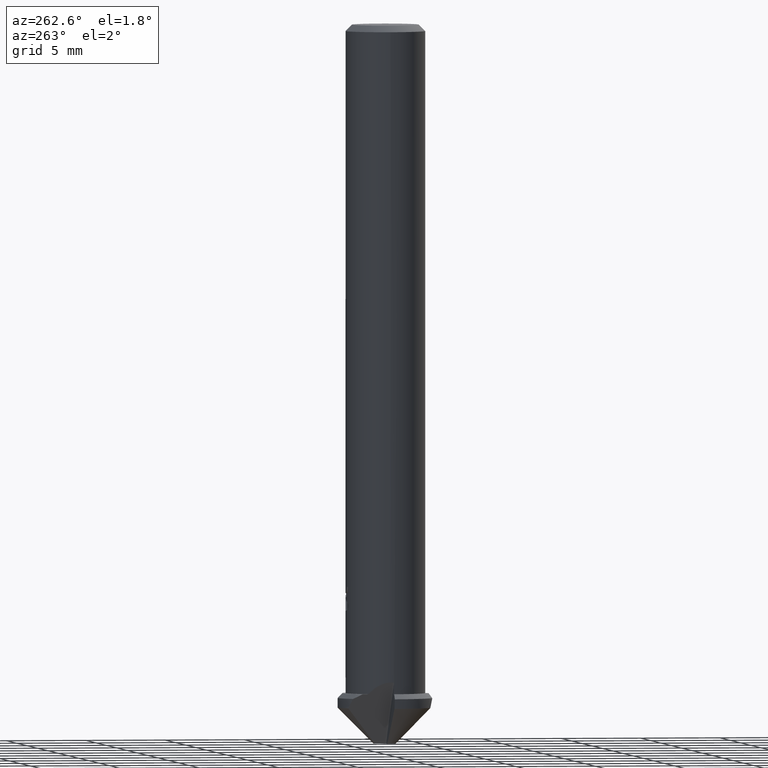
[diagram: clean part render]
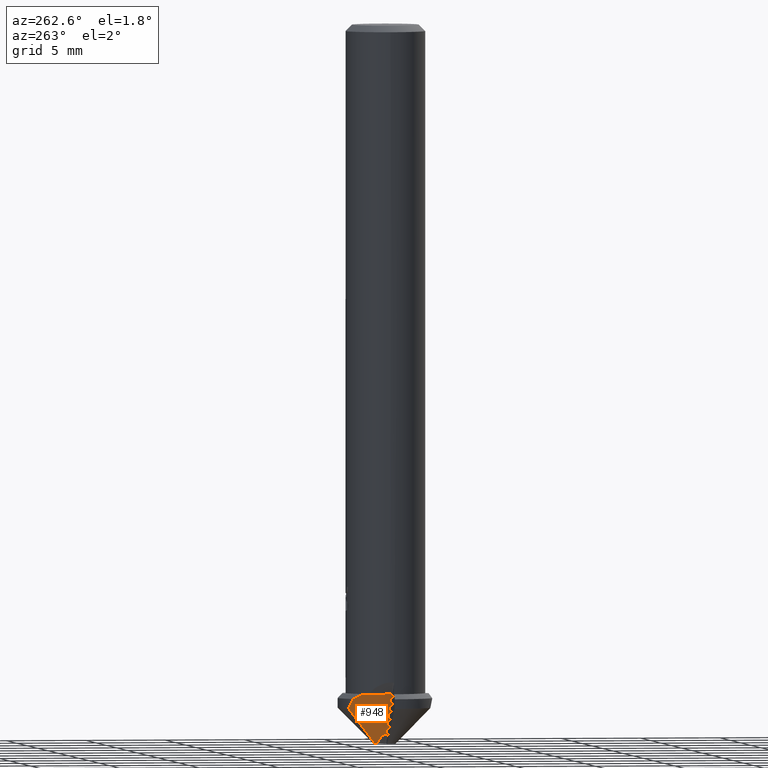
[diagram: same view with one face highlighted and labeled with its STEP entity id]
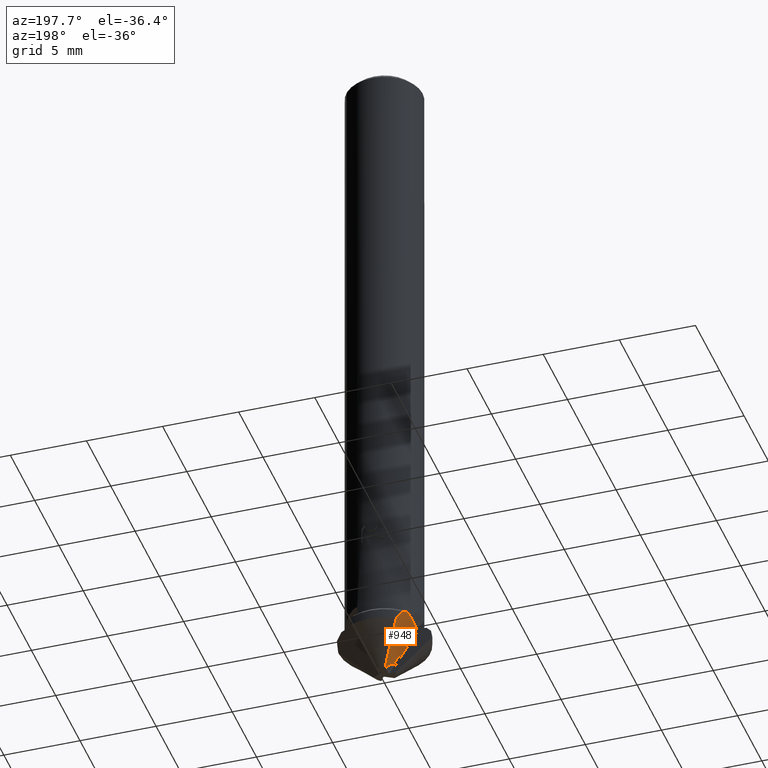
[diagram: same view with one face highlighted and labeled with its STEP entity id]
A machine part, auxiliary view. The second image highlights one B-rep face of the part: STEP entity #948.
A second angle (auxiliary view) of the same face is appended — the face is thin or edge-on in the first view.
In plain terms, the highlighted planar face has unit normal (0.8661, 0.0127, 0.4997).
Its self-contained STEP definition (entity closure, byte-faithful):
#476=VERTEX_POINT('',#1342);
#518=EDGE_CURVE('',#802,#924,#1385,.T.);
#522=VERTEX_POINT('',#1390);
#538=VERTEX_POINT('',#1409);
#642=EDGE_CURVE('',#538,#802,#1524,.T.);
#666=VERTEX_POINT('',#1550);
#702=EDGE_CURVE('',#1170,#476,#1587,.T.);
#720=EDGE_CURVE('',#522,#910,#1606,.T.);
#802=VERTEX_POINT('',#1695);
#828=EDGE_CURVE('',#1096,#666,#1727,.T.);
#910=VERTEX_POINT('',#1818);
#924=VERTEX_POINT('',#1833);
#934=EDGE_CURVE('',#924,#522,#1843,.T.);
#948=ADVANCED_FACE('',(#1858),#1859,.F.);
#1066=EDGE_CURVE('',#910,#1170,#1983,.T.);
#1096=VERTEX_POINT('',#2016);
#1170=VERTEX_POINT('',#2100);
#1180=EDGE_CURVE('',#1096,#476,#2111,.T.);
#1238=EDGE_CURVE('',#666,#538,#2175,.T.);
#1342=CARTESIAN_POINT('',(-2.07152668645923,-0.107668672765562,-41.85));
#1385=(B_SPLINE_CURVE(2,(#2386,#2387,#2388),.UNSPECIFIED.,.F.,.F.)B_SPLINE_CURVE_WITH_KNOTS((3,3),(0.0,3.19557728387752),.UNSPECIFIED.)RATIONAL_B_SPLINE_CURVE((1.0,1.20879147207731,1.0))BOUNDED_CURVE()REPRESENTATION_ITEM('')GEOMETRIC_REPRESENTATION_ITEM()CURVE());
#1390=CARTESIAN_POINT('',(-1.93374490560221,2.29360647018129,-42.15));
#1409=CARTESIAN_POINT('',(-0.265975676265559,0.695903685602454,-45.0));
#1524=LINE('',#2624,#2625);
#1550=CARTESIAN_POINT('',(-0.269396162552323,0.536120982243823,-44.99));
#1587=LINE('',#2739,#2740);
#1606=(B_SPLINE_CURVE(2,(#2772,#2773,#2774),.UNSPECIFIED.,.F.,.F.)B_SPLINE_CURVE_WITH_KNOTS((3,3),(0.0,0.66067462479535),.UNSPECIFIED.)RATIONAL_B_SPLINE_CURVE((1.0,1.00169448352182,1.0))BOUNDED_CURVE()REPRESENTATION_ITEM('')GEOMETRIC_REPRESENTATION_ITEM()CURVE());
#1695=CARTESIAN_POINT('',(-0.266053891210158,0.701224163140385,-45.0));
#1727=ELLIPSE('',#3081,1.20073584576875,0.6);
#1818=CARTESIAN_POINT('',(-2.09265312890179,1.72188933503217,-41.86));
#1833=CARTESIAN_POINT('',(-1.59124968913594,2.54321143966143,-42.75));
#1843=ELLIPSE('',#3330,6.00367922884375,3.0);
#1858=FACE_OUTER_BOUND('',#3376,.T.);
#1859=PLANE('',#3377);
#1983=(B_SPLINE_CURVE(2,(#3706,#3707,#3708),.UNSPECIFIED.,.F.,.F.)B_SPLINE_CURVE_WITH_KNOTS((3,3),(0.0,0.02519336248384),.UNSPECIFIED.)RATIONAL_B_SPLINE_CURVE((1.0,1.00000275105687,1.0))BOUNDED_CURVE()REPRESENTATION_ITEM('')GEOMETRIC_REPRESENTATION_ITEM()CURVE());
#2016=CARTESIAN_POINT('',(-0.599088917852454,0.0330525113474856,-44.4057318701355));
#2100=CARTESIAN_POINT('',(-2.09809214095343,1.69941441916604,-41.85));
#2111=LINE('',#3993,#3994);
#2175=(B_SPLINE_CURVE(2,(#4117,#4118,#4119),.UNSPECIFIED.,.F.,.F.)B_SPLINE_CURVE_WITH_KNOTS((3,3),(0.0,2.05390842824059),.UNSPECIFIED.)RATIONAL_B_SPLINE_CURVE((1.0,3.72611473754675,1.0))BOUNDED_CURVE()REPRESENTATION_ITEM('')GEOMETRIC_REPRESENTATION_ITEM()CURVE());
#2386=CARTESIAN_POINT('',(-0.266053891210158,0.701224163140385,-45.0));
#2387=CARTESIAN_POINT('',(-0.551858646575252,1.11144353671853,-44.5150730610233));
#2388=CARTESIAN_POINT('',(-1.59124968913594,2.54321143966143,-42.75));
#2624=CARTESIAN_POINT('',(-0.3438939686795,5.99620181542247,-45.0));
#2625=VECTOR('',#4475,1.0);
#2739=CARTESIAN_POINT('',(-2.16096291587916,5.97612326936604,-41.85));
#2740=VECTOR('',#4531,1.0);
#2772=CARTESIAN_POINT('',(-1.93374490560221,2.29360647018129,-42.15));
#2773=CARTESIAN_POINT('',(-2.02478509936949,2.00069059871419,-41.9847382576289));
#2774=CARTESIAN_POINT('',(-2.09265312890179,1.72188933503217,-41.86));
#3081=AXIS2_PLACEMENT_3D('',#4695,#4696,#4697);
#3330=AXIS2_PLACEMENT_3D('',#4834,#4835,#4836);
#3376=EDGE_LOOP('',(#4851,#4852,#4853,#4854,#4855,#4856,#4857,#4858,#4859));
#3377=AXIS2_PLACEMENT_3D('',#4860,#4861,#4862);
#3706=CARTESIAN_POINT('',(-2.09265312890179,1.72188933503217,-41.86));
#3707=CARTESIAN_POINT('',(-2.09539103863294,1.71064202612764,-41.8549678502269));
#3708=CARTESIAN_POINT('',(-2.09809214095344,1.69941441916604,-41.85));
#3993=CARTESIAN_POINT('',(-0.19012995949681,0.0721368041443879,-45.1155679431642));
#3994=VECTOR('',#5124,1.0);
#4117=CARTESIAN_POINT('',(-0.228346524448143,-1.02854648158087,-45.0212820071702));
#4118=CARTESIAN_POINT('',(-0.282727546025806,-0.00415630348805187,-44.9531264574469));
#4119=CARTESIAN_POINT('',(-0.258482099120121,1.02138974169237,-45.0212820071702));
#4475=DIRECTION('',(-0.0146991494333453,0.999891961666827,0.0));
#4531=DIRECTION('',(0.0146991494333453,-0.999891961666827,0.0));
#4695=CARTESIAN_POINT('',(0.0,0.0,-45.4432782267687));
#4696=DIRECTION('',(-0.866108656975691,-0.0127324361655803,-0.499693585491204));
#4697=DIRECTION('',(-0.499639599429131,-0.00734507068401934,0.866202240021893));
#4834=CARTESIAN_POINT('',(0.0,0.0,-45.4432782267687));
#4835=DIRECTION('',(0.866108656975691,0.0127324361655803,0.499693585491204));
#4836=DIRECTION('',(-0.49963959942913,-0.00734507068401933,0.866202240021893));
#4851=ORIENTED_EDGE('',*,*,#828,.F.);
#4852=ORIENTED_EDGE('',*,*,#1180,.T.);
#4853=ORIENTED_EDGE('',*,*,#702,.F.);
#4854=ORIENTED_EDGE('',*,*,#1066,.F.);
#4855=ORIENTED_EDGE('',*,*,#720,.F.);
#4856=ORIENTED_EDGE('',*,*,#934,.F.);
#4857=ORIENTED_EDGE('',*,*,#518,.F.);
#4858=ORIENTED_EDGE('',*,*,#642,.F.);
#4859=ORIENTED_EDGE('',*,*,#1238,.F.);
#4860=CARTESIAN_POINT('',(-0.605512280632602,11.9826243422784,-44.6990793028196));
#4861=DIRECTION('',(0.86610865697569,0.0127324361655803,0.499693585491204));
#4862=DIRECTION('',(-0.034832887576599,0.99878269316782,0.0349256606453176));
#5124=DIRECTION('',(-0.498640616330882,-0.0476551875216675,0.865497844507676));